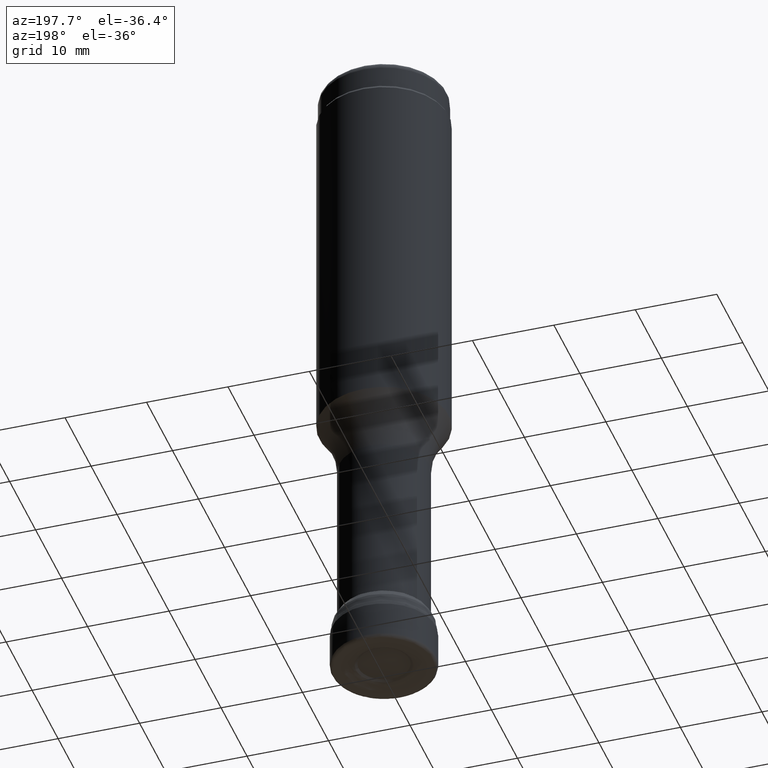
[diagram: clean part render]
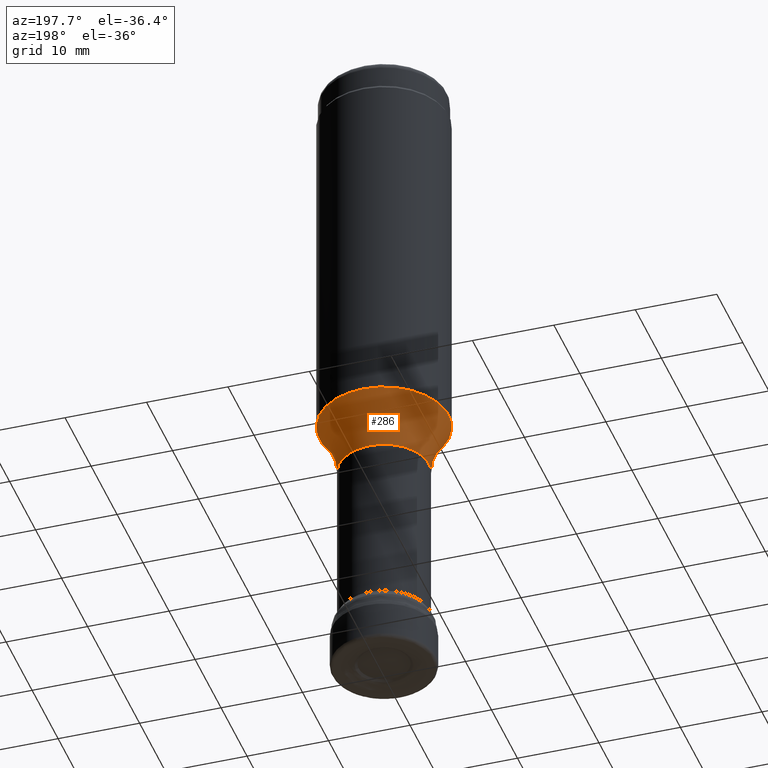
[diagram: same view with one face highlighted and labeled with its STEP entity id]
A machine part, auxiliary view. The second image highlights one B-rep face of the part: STEP entity #286.
In plain terms, the highlighted toroidal blend (fillet) surface has major radius 15.5 mm and minor (blend) radius 10 mm.
Its self-contained STEP definition (entity closure, byte-faithful):
#154=TOROIDAL_SURFACE('',#727,15.5,10.);
#216=FACE_BOUND('',#353,.T.);
#217=FACE_BOUND('',#354,.T.);
#286=ADVANCED_FACE('',(#216,#217),#154,.F.);
#353=EDGE_LOOP('',(#444));
#354=EDGE_LOOP('',(#445));
#444=ORIENTED_EDGE('',*,*,#575,.F.);
#445=ORIENTED_EDGE('',*,*,#584,.F.);
#527=VERTEX_POINT('',#1190);
#536=VERTEX_POINT('',#1251);
#575=EDGE_CURVE('',#527,#527,#626,.T.);
#584=EDGE_CURVE('',#536,#536,#627,.T.);
#626=CIRCLE('',#712,5.5);
#627=CIRCLE('',#716,7.9375);
#712=AXIS2_PLACEMENT_3D('',#1189,#791,#792);
#716=AXIS2_PLACEMENT_3D('',#1250,#801,#802);
#727=AXIS2_PLACEMENT_3D('',#1267,#823,#824);
#791=DIRECTION('',(0.,-1.17145536458252E-15,-1.));
#792=DIRECTION('',(0.,-1.,1.26161707343768E-15));
#801=DIRECTION('',(0.,1.17145536458252E-15,1.));
#802=DIRECTION('',(0.,-1.,8.74191357972564E-16));
#823=DIRECTION('',(0.,1.17145536458252E-15,1.));
#824=DIRECTION('',(0.,-1.,1.22451068892481E-15));
#1189=CARTESIAN_POINT('',(0.,3.3337712948423E-14,28.4583723429392));
#1190=CARTESIAN_POINT('',(0.,-5.49999999999997,28.4583723429392));
#1250=CARTESIAN_POINT('',(0.,4.10023435068258E-14,35.0012));
#1251=CARTESIAN_POINT('',(0.,-7.93749999999996,35.0012));
#1267=CARTESIAN_POINT('',(0.,3.3337712948423E-14,28.4583723429392));